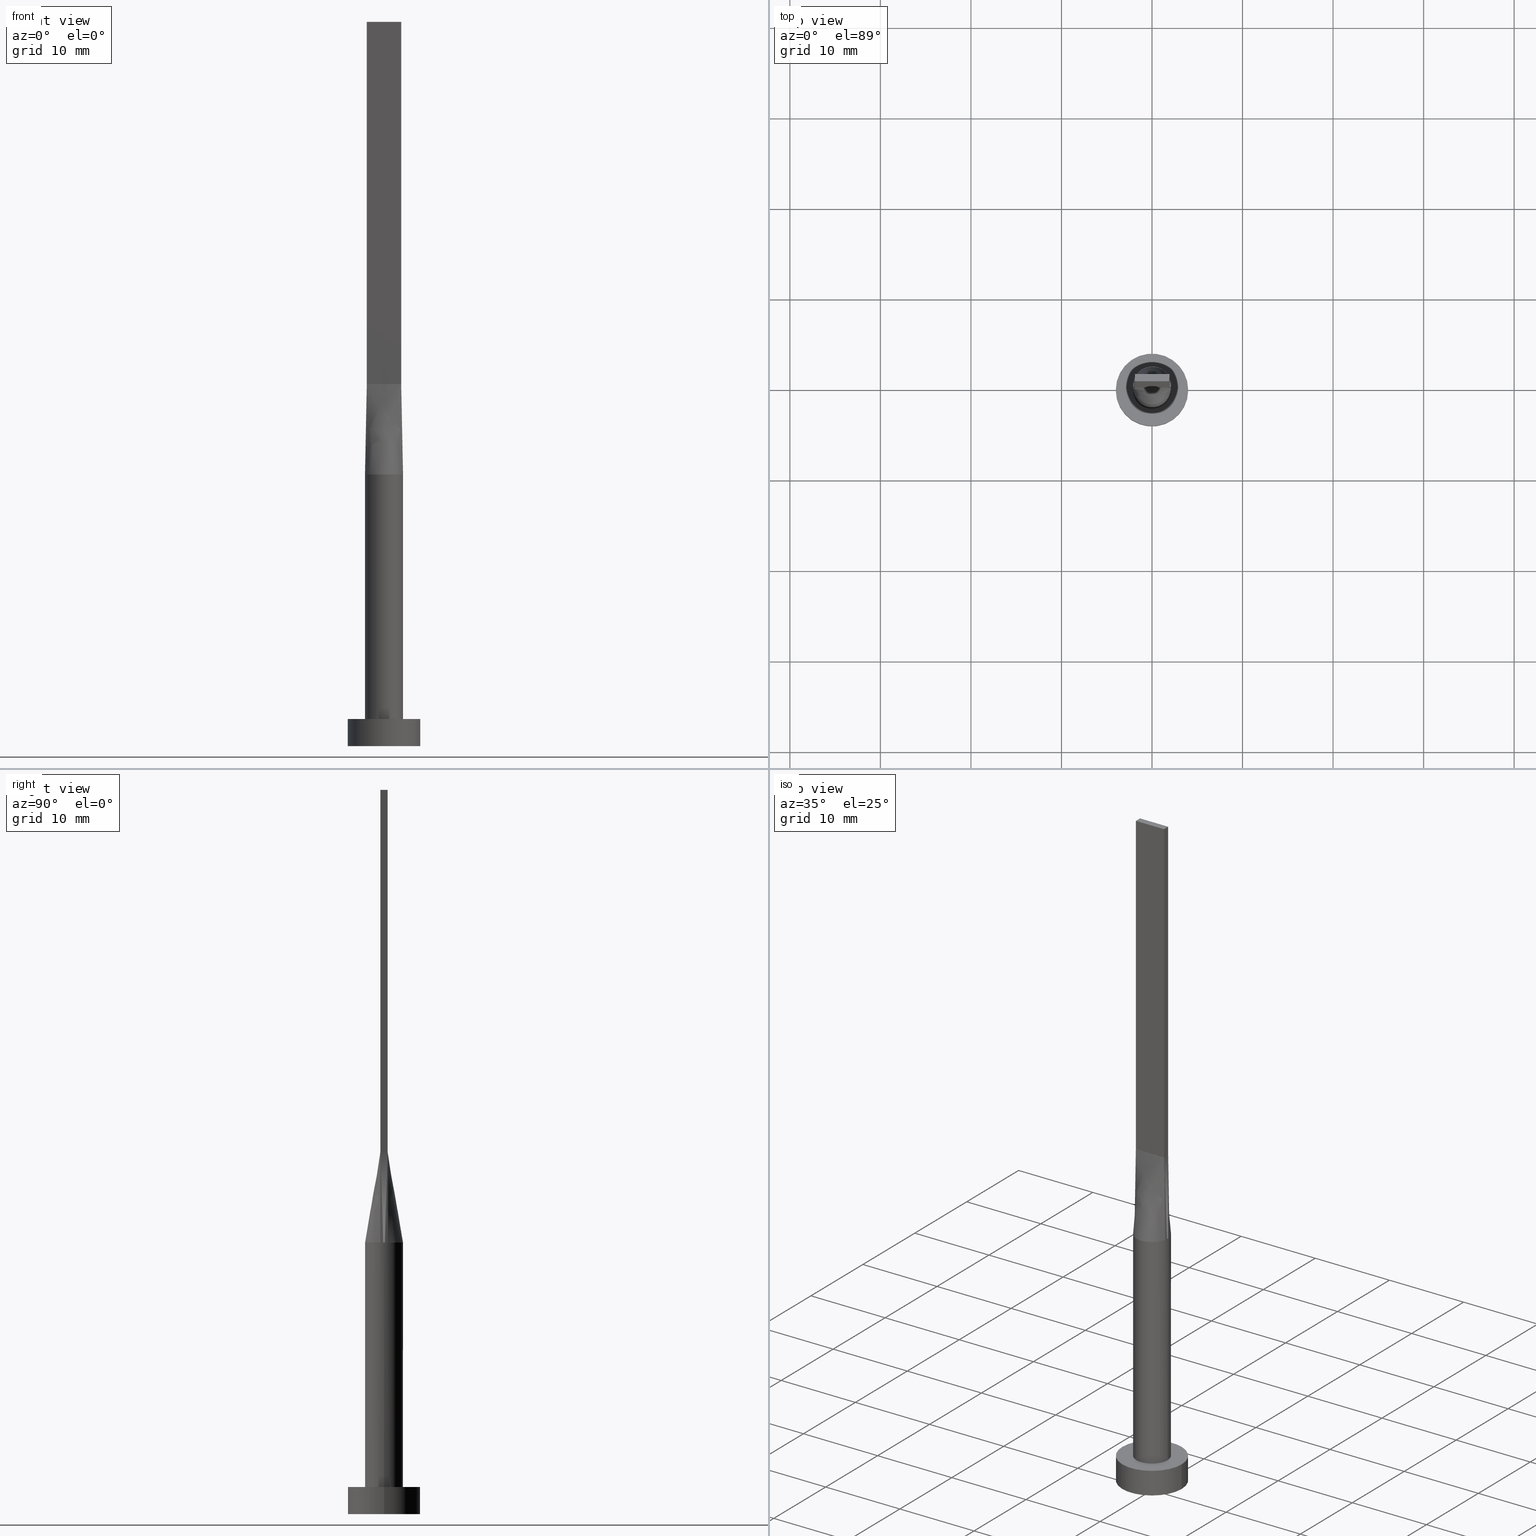
[diagram: canonical four-view strip — front | top / right | iso, engineering-drawing reading convention]
A machine part, canonical four-view strip (front | top / right | iso — engineering-drawing reading convention). The complete STEP part file that produces these views, byte-faithful:
ISO-10303-21;
HEADER;
FILE_DESCRIPTION (( 'STEP AP203' ),
    '1' );
FILE_NAME ('f907.STEP',
    '2026-02-12T09:04:25',
    ( '' ),
    ( '' ),
    'SwSTEP 2.0',
    'SolidWorks 2019',
    '' );
FILE_SCHEMA (( 'CONFIG_CONTROL_DESIGN' ));
ENDSEC;

DATA;
#1 = DIRECTION ( 'NONE',  ( 0.000000000000000000, 0.000000000000000000, 1.000000000000000000 ) ) ;
#2 = CIRCLE ( 'NONE', #452, 2.100000000000000089 ) ;
#3 = DIRECTION ( 'NONE',  ( -2.710505431213761578E-16, -1.000000000000000000, 0.000000000000000000 ) ) ;
#4 = CARTESIAN_POINT ( 'NONE',  ( 0.6333333333333355242, -0.3999999999999997446, 39.99999999999999289 ) ) ;
#5 = CIRCLE ( 'NONE', #359, 2.100000000000000089 ) ;
#6 = PLANE ( 'NONE',  #107 ) ;
#7 = DIRECTION ( 'NONE',  ( -1.000000000000000000, 8.131516293641283255E-16, 0.000000000000000000 ) ) ;
#8 = CARTESIAN_POINT ( 'NONE',  ( 1.069497409764670115, -1.827724181718573204, 30.00000000000001776 ) ) ;
#9 = AXIS2_PLACEMENT_3D ( 'NONE', #535, #541, #233 ) ;
#10 = CARTESIAN_POINT ( 'NONE',  ( 1.899999999999999023, -0.3999999999999998002, 40.00000000000000000 ) ) ;
#11 = DATE_AND_TIME ( #561, #526 ) ;
#12 = ADVANCED_FACE ( 'NONE', ( #402 ), #573, .F. ) ;
#13 = CARTESIAN_POINT ( 'NONE',  ( -1.899999999999999911, -0.3999999999999995781, 80.00000000000000000 ) ) ;
#14 = CARTESIAN_POINT ( 'NONE',  ( -1.899999999999999689, 0.4000000000000002442, 40.00000000000000000 ) ) ;
#15 = ORIENTED_EDGE ( 'NONE', *, *, #580, .F. ) ;
#16 = EDGE_CURVE ( 'NONE', #403, #443, #371, .T. ) ;
#17 = APPROVAL_DATE_TIME ( #421, #102 ) ;
#18 = VECTOR ( 'NONE', #141, 1000.000000000000000 ) ;
#19 = CARTESIAN_POINT ( 'NONE',  ( 1.899999999999999689, 0.4000000000000002442, 40.00000000000000000 ) ) ;
#20 = VERTEX_POINT ( 'NONE', #274 ) ;
#21 = CALENDAR_DATE ( 2026, 12, 2 ) ;
#22 = APPROVAL ( #83, 'NEUR�EN�' ) ;
#23 = AXIS2_PLACEMENT_3D ( 'NONE', #327, #7, #152 ) ;
#24 = CARTESIAN_POINT ( 'NONE',  ( -0.2839879338753505955, 2.100000000000000533, 30.00000000000000000 ) ) ;
#25 = EDGE_LOOP ( 'NONE', ( #333, #578 ) ) ;
#26 = APPROVAL_STATUS ( 'not_yet_approved' ) ;
#27 = CARTESIAN_POINT ( 'NONE',  ( 1.266666666666666385, 0.4000000000000001887, 39.99999999999999289 ) ) ;
#28 = ORIENTED_EDGE ( 'NONE', *, *, #122, .T. ) ;
#29 = CARTESIAN_POINT ( 'NONE',  ( 1.899999999999999689, 0.4000000000000002442, 80.00000000000000000 ) ) ;
#30 = ORIENTED_EDGE ( 'NONE', *, *, #16, .F. ) ;
#31 = CARTESIAN_POINT ( 'NONE',  ( 0.000000000000000000, 0.000000000000000000, 3.000000000000000000 ) ) ;
#32 = DIRECTION ( 'NONE',  ( -1.000000000000000000, 0.000000000000000000, 0.000000000000000000 ) ) ;
#33 = CARTESIAN_POINT ( 'NONE',  ( 0.000000000000000000, 0.000000000000000000, 3.000000000000000000 ) ) ;
#34 = APPLICATION_PROTOCOL_DEFINITION ( 'international standard', 'config_control_design', 1994, #133 ) ;
#35 = CARTESIAN_POINT ( 'NONE',  ( -2.100000000000000089, 0.000000000000000000, 3.000000000000000000 ) ) ;
#36 = CARTESIAN_POINT ( 'NONE',  ( -1.899999999999999467, 0.2666666666666668850, 39.99999999999999289 ) ) ;
#37 = ORIENTED_EDGE ( 'NONE', *, *, #366, .T. ) ;
#38 = CARTESIAN_POINT ( 'NONE',  ( -1.899999999999999911, -0.3999999999999995781, 40.00000000000000000 ) ) ;
#39 = CARTESIAN_POINT ( 'NONE',  ( -1.960396204527856456, 0.7808940436533434726, 30.00000000000000000 ) ) ;
#40 = VECTOR ( 'NONE', #557, 1000.000000000000000 ) ;
#41 = ADVANCED_FACE ( 'NONE', ( #311 ), #263, .T. ) ;
#42 = DIRECTION ( 'NONE',  ( -0.000000000000000000, -0.000000000000000000, -1.000000000000000000 ) ) ;
#43 = CARTESIAN_POINT ( 'NONE',  ( 0.000000000000000000, 0.000000000000000000, 3.000000000000000000 ) ) ;
#44 = APPROVAL_PERSON_ORGANIZATION ( #104, #102, #344 ) ;
#45 = EDGE_CURVE ( 'NONE', #456, #72, #467, .T. ) ;
#46 = DIRECTION ( 'NONE',  ( -0.01549351246150988334, -0.003261792097160004338, 0.9998746480354023802 ) ) ;
#47 = DIRECTION ( 'NONE',  ( 1.000000000000000000, 0.000000000000000000, -0.000000000000000000 ) ) ;
#48 = CARTESIAN_POINT ( 'NONE',  ( -1.583333333333332149, -0.3999999999999995226, 39.99999999999999289 ) ) ;
#49 = PRODUCT_DEFINITION ( 'NEZN�M�', '', #303, #161 ) ;
#50 = CIRCLE ( 'NONE', #9, 2.100000000000000089 ) ;
#51 = ORIENTED_EDGE ( 'NONE', *, *, #204, .F. ) ;
#52 = ADVANCED_FACE ( 'NONE', ( #570 ), #577, .T. ) ;
#53 = CARTESIAN_POINT ( 'NONE',  ( -1.899999999999999911, -0.3999999999999995781, 40.00000000000000000 ) ) ;
#54 = FACE_OUTER_BOUND ( 'NONE', #544, .T. ) ;
#55 = CC_DESIGN_APPROVAL ( #22, ( #49 ) ) ;
#56 = ORIENTED_EDGE ( 'NONE', *, *, #329, .T. ) ;
#57 = DIRECTION ( 'NONE',  ( 1.000000000000000000, 0.000000000000000000, -0.000000000000000000 ) ) ;
#58 = CARTESIAN_POINT ( 'NONE',  ( 1.899999999999999689, 0.4000000000000002442, 40.00000000000000000 ) ) ;
#59 = CARTESIAN_POINT ( 'NONE',  ( -1.108333333333330950, -0.3999999999999995781, 39.99999999999999289 ) ) ;
#60 = CARTESIAN_POINT ( 'NONE',  ( -2.054954548472173403, -0.4326220102046674509, 30.00000000000000000 ) ) ;
#61 = ORIENTED_EDGE ( 'NONE', *, *, #329, .F. ) ;
#62 = CC_DESIGN_SECURITY_CLASSIFICATION ( #99, ( #303 ) ) ;
#63 = EDGE_CURVE ( 'NONE', #465, #297, #539, .T. ) ;
#64 = CARTESIAN_POINT ( 'NONE',  ( -1.288188016604684183, 1.676316068528189263, 30.00000000000000355 ) ) ;
#65 = ORIENTED_EDGE ( 'NONE', *, *, #137, .T. ) ;
#66 = CYLINDRICAL_SURFACE ( 'NONE', #504, 2.100000000000000089 ) ;
#67 = ORIENTED_EDGE ( 'NONE', *, *, #153, .F. ) ;
#68 = CARTESIAN_POINT ( 'NONE',  ( 1.288188016604684183, 1.676316068528189041, 30.00000000000000355 ) ) ;
#69 = EDGE_LOOP ( 'NONE', ( #517, #322, #61, #300 ) ) ;
#70 = AXIS2_PLACEMENT_3D ( 'NONE', #534, #397, #171 ) ;
#71 = CARTESIAN_POINT ( 'NONE',  ( 0.7916666666666665186, 0.4000000000000001887, 39.99999999999999289 ) ) ;
#72 = VERTEX_POINT ( 'NONE', #454 ) ;
#73 = EDGE_LOOP ( 'NONE', ( #222, #294, #217, #250 ) ) ;
#74 = DIRECTION ( 'NONE',  ( 0.000000000000000000, 0.000000000000000000, 1.000000000000000000 ) ) ;
#75 = CARTESIAN_POINT ( 'NONE',  ( -1.069497409764671003, 1.827724181718571872, 29.99999999999999645 ) ) ;
#76 = VERTEX_POINT ( 'NONE', #248 ) ;
#77 = DIRECTION ( 'NONE',  ( 1.000000000000000000, 0.000000000000000000, 0.000000000000000000 ) ) ;
#78 = CIRCLE ( 'NONE', #180, 4.000000000000000000 ) ;
#79 = CARTESIAN_POINT ( 'NONE',  ( 1.977477274236086213, 0.4163110051023343749, 35.00000000000000000 ) ) ;
#80 = CARTESIAN_POINT ( 'NONE',  ( 1.638039177766652754, 1.336522195786985057, 30.00000000000000711 ) ) ;
#81 = CARTESIAN_POINT ( 'NONE',  ( -1.899999999999999911, -0.3999999999999995781, 80.00000000000000000 ) ) ;
#82 = CARTESIAN_POINT ( 'NONE',  ( -2.084662771283844140, -0.2915079518492298405, 30.00000000000000000 ) ) ;
#83 = APPROVAL_STATUS ( 'not_yet_approved' ) ;
#84 = B_SPLINE_SURFACE_WITH_KNOTS ( 'NONE', 3, 1, ( 
 ( #407, #277 ),
 ( #189, #267 ),
 ( #135, #485 ),
 ( #538, #88 ),
 ( #364, #542 ),
 ( #131, #448 ) ),
 .UNSPECIFIED., .F., .F., .F.,
 ( 4, 2, 4 ),
 ( 2, 2 ),
 ( 0.000000000000000000, 0.5000000000000000000, 1.000000000000000000 ),
 ( 0.000000000000000000, 1.000000000000000000 ),
 .UNSPECIFIED. ) ;
#85 = DIRECTION ( 'NONE',  ( 0.000000000000000000, 0.000000000000000000, 1.000000000000000000 ) ) ;
#86 = CC_DESIGN_DATE_AND_TIME_ASSIGNMENT ( #289, #166, ( #99 ) ) ;
#87 = CARTESIAN_POINT ( 'NONE',  ( -1.069497409764671003, 1.827724181718571872, 29.99999999999999645 ) ) ;
#88 = CARTESIAN_POINT ( 'NONE',  ( 1.899999999999999467, 0.1333333333333330262, 39.99999999999999289 ) ) ;
#89 = DIRECTION ( 'NONE',  ( 1.000000000000000000, 0.000000000000000000, 0.000000000000000000 ) ) ;
#90 = CIRCLE ( 'NONE', #207, 4.000000000000000000 ) ;
#91 = DIRECTION ( 'NONE',  ( -1.000000000000000000, 5.706327223607918787E-17, 0.000000000000000000 ) ) ;
#92 = PLANE ( 'NONE',  #96 ) ;
#93 = EDGE_CURVE ( 'NONE', #257, #370, #524, .T. ) ;
#94 = CARTESIAN_POINT ( 'NONE',  ( -1.977477274236086657, -0.4163110051023335423, 35.00000000000000000 ) ) ;
#95 = CARTESIAN_POINT ( 'NONE',  ( -1.769939800381044481, -1.149026496286139176, 29.99999999999999645 ) ) ;
#96 = AXIS2_PLACEMENT_3D ( 'NONE', #500, #547, #278 ) ;
#97 = CARTESIAN_POINT ( 'NONE',  ( 4.000000000000000000, 4.898587196589412829E-16, 3.000000000000000000 ) ) ;
#98 = CARTESIAN_POINT ( 'NONE',  ( 1.638039177766651200, -1.336522195786985279, 30.00000000000001066 ) ) ;
#99 = SECURITY_CLASSIFICATION ( '', '', #433 ) ;
#100 = ORIENTED_EDGE ( 'NONE', *, *, #93, .F. ) ;
#101 = CARTESIAN_POINT ( 'NONE',  ( -0.6333333333333305282, -0.3999999999999996336, 39.99999999999999289 ) ) ;
#102 = APPROVAL ( #110, 'NEUR�EN�' ) ;
#103 = DIRECTION ( 'NONE',  ( 1.000000000000000000, -5.706327223607920020E-17, 0.000000000000000000 ) ) ;
#104 = PERSON_AND_ORGANIZATION ( #462, #338 ) ;
#105 = MANIFOLD_SOLID_BREP ( 'P�idat vysunut�m5', #549 ) ;
#106 = AXIS2_PLACEMENT_3D ( 'NONE', #446, #1, #270 ) ;
#107 = AXIS2_PLACEMENT_3D ( 'NONE', #457, #242, #47 ) ;
#108 = CARTESIAN_POINT ( 'NONE',  ( -2.019676033883314403, -0.6001949545017496446, 30.00000000000000355 ) ) ;
#109 = EDGE_LOOP ( 'NONE', ( #471, #386, #523, #65 ) ) ;
#110 = APPROVAL_STATUS ( 'not_yet_approved' ) ;
#111 = VECTOR ( 'NONE', #552, 1000.000000000000000 ) ;
#112 = CARTESIAN_POINT ( 'NONE',  ( -1.108333333333333615, 0.4000000000000001887, 39.99999999999999289 ) ) ;
#113 = ORIENTED_EDGE ( 'NONE', *, *, #301, .F. ) ;
#114 = COORDINATED_UNIVERSAL_TIME_OFFSET ( 1, 0, .AHEAD. ) ;
#115 = DIRECTION ( 'NONE',  ( 0.000000000000000000, 0.000000000000000000, 1.000000000000000000 ) ) ;
#116 = EDGE_LOOP ( 'NONE', ( #498, #440, #347, #212 ) ) ;
#117 = PERSON_AND_ORGANIZATION ( #462, #338 ) ;
#118 = VECTOR ( 'NONE', #221, 1000.000000000000000 ) ;
#119 = DIRECTION ( 'NONE',  ( -0.000000000000000000, -0.000000000000000000, -1.000000000000000000 ) ) ;
#120 = VERTEX_POINT ( 'NONE', #336 ) ;
#121 = COORDINATED_UNIVERSAL_TIME_OFFSET ( 1, 0, .AHEAD. ) ;
#122 = EDGE_CURVE ( 'NONE', #473, #501, #564, .T. ) ;
#123 = CARTESIAN_POINT ( 'NONE',  ( -2.019676033883313959, 0.6001949545017503107, 30.00000000000000355 ) ) ;
#124 = ORIENTED_EDGE ( 'NONE', *, *, #533, .T. ) ;
#125 = ORIENTED_EDGE ( 'NONE', *, *, #469, .F. ) ;
#126 =( NAMED_UNIT ( * ) SI_UNIT ( $, .STERADIAN. ) SOLID_ANGLE_UNIT ( ) );
#127 = FACE_OUTER_BOUND ( 'NONE', #116, .T. ) ;
#128 = CARTESIAN_POINT ( 'NONE',  ( -1.899999999999999911, -0.3999999999999995781, 40.00000000000000000 ) ) ;
#129 = CARTESIAN_POINT ( 'NONE',  ( -4.000000000000000000, 0.000000000000000000, 3.000000000000000000 ) ) ;
#130 = AXIS2_PLACEMENT_3D ( 'NONE', #43, #532, #185 ) ;
#131 = CARTESIAN_POINT ( 'NONE',  ( 2.054954548472172959, 0.4326220102046685612, 30.00000000000000000 ) ) ;
#132 = CARTESIAN_POINT ( 'NONE',  ( -1.899999999999999689, 0.4000000000000002442, 40.00000000000000000 ) ) ;
#133 = APPLICATION_CONTEXT ( 'configuration controlled 3d designs of mechanical parts and assemblies' ) ;
#134 = CALENDAR_DATE ( 2026, 12, 2 ) ;
#135 = CARTESIAN_POINT ( 'NONE',  ( 2.099516882689679953, -0.1457539759246157252, 30.00000000000000000 ) ) ;
#136 = CARTESIAN_POINT ( 'NONE',  ( 1.288188016604684183, 1.676316068528189041, 30.00000000000000355 ) ) ;
#137 = EDGE_CURVE ( 'NONE', #520, #159, #559, .T. ) ;
#138 = DIRECTION ( 'NONE',  ( 1.000000000000000000, 0.000000000000000000, -0.000000000000000000 ) ) ;
#139 = CARTESIAN_POINT ( 'NONE',  ( 2.100000000000000089, 2.571758278209441957E-16, 30.00000000000000000 ) ) ;
#140 = CARTESIAN_POINT ( 'NONE',  ( -1.899999999999999689, 0.4000000000000002442, 40.00000000000000000 ) ) ;
#141 = DIRECTION ( 'NONE',  ( -0.000000000000000000, -0.000000000000000000, -1.000000000000000000 ) ) ;
#142 = AXIS2_PLACEMENT_3D ( 'NONE', #325, #545, #144 ) ;
#143 = ORIENTED_EDGE ( 'NONE', *, *, #45, .F. ) ;
#144 = DIRECTION ( 'NONE',  ( 1.000000000000000000, 0.000000000000000000, 0.000000000000000000 ) ) ;
#145 = CARTESIAN_POINT ( 'NONE',  ( 1.899999999999999689, 0.4000000000000002442, 80.00000000000000000 ) ) ;
#146 = EDGE_CURVE ( 'NONE', #501, #206, #395, .T. ) ;
#147 = FACE_BOUND ( 'NONE', #25, .T. ) ;
#148 = CARTESIAN_POINT ( 'NONE',  ( 2.054954548472172959, -0.4326220102046682281, 30.00000000000000000 ) ) ;
#149 = EDGE_CURVE ( 'NONE', #520, #556, #430, .T. ) ;
#150 = CARTESIAN_POINT ( 'NONE',  ( -2.099758441344840243, -1.448674240509545331E-15, 30.00000000000000000 ) ) ;
#151 = CIRCLE ( 'NONE', #142, 2.100000000000000089 ) ;
#152 = DIRECTION ( 'NONE',  ( -8.131516293641283255E-16, -1.000000000000000000, 0.000000000000000000 ) ) ;
#153 = EDGE_CURVE ( 'NONE', #481, #473, #2, .T. ) ;
#154 = ORIENTED_EDGE ( 'NONE', *, *, #153, .T. ) ;
#155 = LINE ( 'NONE', #129, #234 ) ;
#156 = VECTOR ( 'NONE', #119, 1000.000000000000000 ) ;
#157 = ADVANCED_FACE ( 'NONE', ( #127 ), #176, .T. ) ;
#158 = CARTESIAN_POINT ( 'NONE',  ( 1.108333333333333171, 0.4000000000000002442, 39.99999999999999289 ) ) ;
#159 = VERTEX_POINT ( 'NONE', #260 ) ;
#160 = ORIENTED_EDGE ( 'NONE', *, *, #309, .T. ) ;
#161 = DESIGN_CONTEXT ( 'detailed design', #133, 'design' ) ;
#162 = CARTESIAN_POINT ( 'NONE',  ( 1.769939800381044259, 1.149026496286139620, 29.99999999999999645 ) ) ;
#163 = ORIENTED_EDGE ( 'NONE', *, *, #575, .T. ) ;
#164 = CARTESIAN_POINT ( 'NONE',  ( 1.960396204527856900, 0.7808940436533436946, 30.00000000000000355 ) ) ;
#165 = EDGE_LOOP ( 'NONE', ( #28, #484, #558, #37 ) ) ;
#166 = DATE_TIME_ROLE ( 'classification_date' ) ;
#167 = AXIS2_PLACEMENT_3D ( 'NONE', #315, #494, #310 ) ;
#168 = EDGE_CURVE ( 'NONE', #159, #257, #442, .T. ) ;
#169 = CARTESIAN_POINT ( 'NONE',  ( 0.1583333333333330206, 0.4000000000000001887, 40.00000000000000000 ) ) ;
#170 = EDGE_LOOP ( 'NONE', ( #563, #15, #428, #67, #291, #285 ) ) ;
#171 = DIRECTION ( 'NONE',  ( 1.000000000000000000, -8.881784197001252323E-16, 0.000000000000000000 ) ) ;
#172 = CIRCLE ( 'NONE', #70, 2.100000000000000089 ) ;
#173 = CARTESIAN_POINT ( 'NONE',  ( 0.6333333333333331927, 0.4000000000000001887, 39.99999999999999289 ) ) ;
#174 = CARTESIAN_POINT ( 'NONE',  ( -1.899999999999999467, 0.1333333333333335535, 39.99999999999999289 ) ) ;
#175 = ADVANCED_FACE ( 'NONE', ( #476 ), #66, .T. ) ;
#176 = B_SPLINE_SURFACE_WITH_KNOTS ( 'NONE', 3, 1, ( 
 ( #565, #19 ),
 ( #296, #205 ),
 ( #164, #438 ),
 ( #162, #27 ),
 ( #208, #158 ),
 ( #68, #71 ),
 ( #434, #173 ),
 ( #480, #256 ),
 ( #349, #169 ),
 ( #24, #389 ),
 ( #427, #211 ),
 ( #75, #387 ),
 ( #64, #342 ),
 ( #516, #112 ),
 ( #522, #562 ),
 ( #472, #346 ),
 ( #123, #293 ),
 ( #304, #483 ) ),
 .UNSPECIFIED., .F., .F., .F.,
 ( 4, 2, 2, 2, 2, 2, 2, 2, 4 ),
 ( 2, 2 ),
 ( 0.000000000000000000, 0.1250000000000000000, 0.2500000000000000000, 0.3750000000000000000, 0.5000000000000000000, 0.6250000000000000000, 0.7500000000000000000, 0.8750000000000000000, 1.000000000000000000 ),
 ( 0.000000000000000000, 1.000000000000000000 ),
 .UNSPECIFIED. ) ;
#177 = DIRECTION ( 'NONE',  ( -1.000000000000000000, 0.000000000000000000, 0.000000000000000000 ) ) ;
#178 = CARTESIAN_POINT ( 'NONE',  ( 0.5670887265440297531, 2.040296735810463780, 30.00000000000000000 ) ) ;
#179 = APPROVAL_ROLE ( '' ) ;
#180 = AXIS2_PLACEMENT_3D ( 'NONE', #352, #410, #236 ) ;
#181 = DIRECTION ( 'NONE',  ( 0.000000000000000000, 0.000000000000000000, 1.000000000000000000 ) ) ;
#182 = CARTESIAN_POINT ( 'NONE',  ( -2.099516882689679953, 0.1457539759246153366, 30.00000000000000000 ) ) ;
#183 = EDGE_CURVE ( 'NONE', #76, #206, #313, .T. ) ;
#184 = DIRECTION ( 'NONE',  ( 1.000000000000000000, 0.000000000000000000, 0.000000000000000000 ) ) ;
#185 = DIRECTION ( 'NONE',  ( -1.000000000000000000, 0.000000000000000000, 0.000000000000000000 ) ) ;
#186 = CC_DESIGN_APPROVAL ( #412, ( #99 ) ) ;
#187 = ORIENTED_EDGE ( 'NONE', *, *, #253, .F. ) ;
#188 = PLANE ( 'NONE',  #318 ) ;
#189 = CARTESIAN_POINT ( 'NONE',  ( 2.084662771283844140, -0.2915079518492312838, 30.00000000000000000 ) ) ;
#190 = LINE ( 'NONE', #505, #18 ) ;
#191 = CARTESIAN_POINT ( 'NONE',  ( 1.288188016604683739, -1.676316068528189263, 30.00000000000001421 ) ) ;
#192 =( GEOMETRIC_REPRESENTATION_CONTEXT ( 3 ) GLOBAL_UNCERTAINTY_ASSIGNED_CONTEXT ( ( #426 ) ) GLOBAL_UNIT_ASSIGNED_CONTEXT ( ( #258, #441, #126 ) ) REPRESENTATION_CONTEXT ( 'NONE', 'WORKASPACE' ) );
#193 = PLANE ( 'NONE',  #579 ) ;
#194 = CARTESIAN_POINT ( 'NONE',  ( 0.1583333333333359905, -0.3999999999999996336, 39.99999999999999289 ) ) ;
#195 = CC_DESIGN_PERSON_AND_ORGANIZATION_ASSIGNMENT ( #262, #266, ( #400 ) ) ;
#196 = CARTESIAN_POINT ( 'NONE',  ( -1.977477274236086657, 0.4163110051023338753, 35.00000000000000000 ) ) ;
#197 = EDGE_LOOP ( 'NONE', ( #431, #331, #343, #261, #381, #143 ) ) ;
#198 = VECTOR ( 'NONE', #495, 1000.000000000000000 ) ;
#199 = ADVANCED_BREP_SHAPE_REPRESENTATION ( 'f907', ( #105, #567 ), #192 ) ;
#200 = CARTESIAN_POINT ( 'NONE',  ( -1.069497409764672113, -1.827724181718571650, 30.00000000000000711 ) ) ;
#201 = APPROVAL_PERSON_ORGANIZATION ( #383, #412, #376 ) ;
#202 = CALENDAR_DATE ( 2026, 12, 2 ) ;
#203 = CARTESIAN_POINT ( 'NONE',  ( -1.638039177766652310, -1.336522195786983724, 30.00000000000000355 ) ) ;
#204 = EDGE_CURVE ( 'NONE', #120, #20, #272, .T. ) ;
#205 = CARTESIAN_POINT ( 'NONE',  ( 1.741666666666666252, 0.4000000000000002442, 39.99999999999999289 ) ) ;
#206 = VERTEX_POINT ( 'NONE', #453 ) ;
#207 = AXIS2_PLACEMENT_3D ( 'NONE', #411, #492, #264 ) ;
#208 = CARTESIAN_POINT ( 'NONE',  ( 1.638039177766652754, 1.336522195786985057, 30.00000000000000711 ) ) ;
#209 = ORIENTED_EDGE ( 'NONE', *, *, #460, .F. ) ;
#210 = ADVANCED_FACE ( 'NONE', ( #455 ), #84, .T. ) ;
#211 = CARTESIAN_POINT ( 'NONE',  ( -0.3166666666666669294, 0.4000000000000001887, 39.99999999999999289 ) ) ;
#212 = ORIENTED_EDGE ( 'NONE', *, *, #214, .F. ) ;
#213 = APPROVAL_DATE_TIME ( #11, #412 ) ;
#214 = EDGE_CURVE ( 'NONE', #456, #159, #450, .T. ) ;
#215 = DIRECTION ( 'NONE',  ( 1.000000000000000000, 0.000000000000000000, 0.000000000000000000 ) ) ;
#216 = VERTEX_POINT ( 'NONE', #307 ) ;
#217 = ORIENTED_EDGE ( 'NONE', *, *, #533, .F. ) ;
#218 = CARTESIAN_POINT ( 'NONE',  ( 4.000000000000000000, 4.898587196589412829E-16, 3.000000000000000000 ) ) ;
#219 = ORIENTED_EDGE ( 'NONE', *, *, #137, .F. ) ;
#220 = AXIS2_PLACEMENT_3D ( 'NONE', #350, #447, #229 ) ;
#221 = DIRECTION ( 'NONE',  ( -2.710505431213761578E-16, -1.000000000000000000, 0.000000000000000000 ) ) ;
#222 = ORIENTED_EDGE ( 'NONE', *, *, #288, .T. ) ;
#223 = DIRECTION ( 'NONE',  ( -0.000000000000000000, -0.000000000000000000, -1.000000000000000000 ) ) ;
#224 = LINE ( 'NONE', #38, #419 ) ;
#225 = CARTESIAN_POINT ( 'NONE',  ( -2.099516882689679953, -0.1457539759246147815, 30.00000000000000000 ) ) ;
#226 = PERSON_AND_ORGANIZATION ( #462, #338 ) ;
#227 = B_SPLINE_SURFACE_WITH_KNOTS ( 'NONE', 3, 1, ( 
 ( #60, #283 ),
 ( #108, #290 ),
 ( #243, #48 ),
 ( #95, #550 ),
 ( #203, #59 ),
 ( #247, #548 ),
 ( #200, #101 ),
 ( #281, #286 ),
 ( #239, #374 ),
 ( #377, #194 ),
 ( #418, #367 ),
 ( #8, #4 ),
 ( #191, #326 ),
 ( #98, #510 ),
 ( #468, #414 ),
 ( #417, #369 ),
 ( #245, #420 ),
 ( #148, #10 ) ),
 .UNSPECIFIED., .F., .F., .F.,
 ( 4, 2, 2, 2, 2, 2, 2, 2, 4 ),
 ( 2, 2 ),
 ( 0.000000000000000000, 0.1250000000000000833, 0.2500000000000001110, 0.3750000000000001110, 0.5000000000000001110, 0.6250000000000001110, 0.7500000000000000000, 0.8750000000000000000, 1.000000000000000000 ),
 ( 0.000000000000000000, 1.000000000000000000 ),
 .UNSPECIFIED. ) ;
#228 = DIRECTION ( 'NONE',  ( -0.000000000000000000, -0.000000000000000000, -1.000000000000000000 ) ) ;
#229 = DIRECTION ( 'NONE',  ( 2.710505431213761578E-16, 1.000000000000000000, 0.000000000000000000 ) ) ;
#230 = APPROVAL_DATE_TIME ( #269, #22 ) ;
#231 = CYLINDRICAL_SURFACE ( 'NONE', #405, 2.100000000000000089 ) ;
#232 = CARTESIAN_POINT ( 'NONE',  ( -2.055148177435248691, 0.4326628259079252081, 30.00000000000000000 ) ) ;
#233 = DIRECTION ( 'NONE',  ( 1.000000000000000000, 0.000000000000000000, 0.000000000000000000 ) ) ;
#234 = VECTOR ( 'NONE', #223, 1000.000000000000000 ) ;
#235 = EDGE_CURVE ( 'NONE', #252, #297, #50, .T. ) ;
#236 = DIRECTION ( 'NONE',  ( 1.000000000000000000, 0.000000000000000000, 0.000000000000000000 ) ) ;
#237 = CARTESIAN_POINT ( 'NONE',  ( -4.000000000000000000, 0.000000000000000000, 3.000000000000000000 ) ) ;
#238 = VECTOR ( 'NONE', #555, 1000.000000000000000 ) ;
#239 = CARTESIAN_POINT ( 'NONE',  ( -0.2839879338753514282, -2.100000000000000533, 30.00000000000000711 ) ) ;
#240 = DIRECTION ( 'NONE',  ( -0.01549351246150990416, -0.003261792097159956199, -0.9998746480354023802 ) ) ;
#241 = DIRECTION ( 'NONE',  ( 8.131516293641283255E-16, 1.000000000000000000, 0.000000000000000000 ) ) ;
#242 = DIRECTION ( 'NONE',  ( 0.000000000000000000, 0.000000000000000000, 1.000000000000000000 ) ) ;
#243 = CARTESIAN_POINT ( 'NONE',  ( -1.960396204527856456, -0.7808940436533431395, 30.00000000000000000 ) ) ;
#244 = ORIENTED_EDGE ( 'NONE', *, *, #580, .T. ) ;
#245 = CARTESIAN_POINT ( 'NONE',  ( 2.019676033883313071, -0.6001949545017514209, 30.00000000000000000 ) ) ;
#246 = VECTOR ( 'NONE', #42, 1000.000000000000000 ) ;
#247 = CARTESIAN_POINT ( 'NONE',  ( -1.288188016604684627, -1.676316068528187930, 30.00000000000001066 ) ) ;
#248 = CARTESIAN_POINT ( 'NONE',  ( 1.899999999999999023, -0.3999999999999998002, 80.00000000000000000 ) ) ;
#249 = ORIENTED_EDGE ( 'NONE', *, *, #366, .F. ) ;
#250 = ORIENTED_EDGE ( 'NONE', *, *, #358, .T. ) ;
#251 = CARTESIAN_POINT ( 'NONE',  ( 0.000000000000000000, 0.000000000000000000, 30.00000000000000000 ) ) ;
#252 = VERTEX_POINT ( 'NONE', #35 ) ;
#253 = EDGE_CURVE ( 'NONE', #443, #403, #90, .T. ) ;
#254 = CARTESIAN_POINT ( 'NONE',  ( 1.977477274236086213, -0.4163110051023340419, 35.00000000000000000 ) ) ;
#255 = ORIENTED_EDGE ( 'NONE', *, *, #183, .T. ) ;
#256 = CARTESIAN_POINT ( 'NONE',  ( 0.3166666666666663743, 0.4000000000000001887, 39.99999999999999289 ) ) ;
#257 = VERTEX_POINT ( 'NONE', #140 ) ;
#258 =( LENGTH_UNIT ( ) NAMED_UNIT ( * ) SI_UNIT ( .MILLI., .METRE. ) );
#259 = ADVANCED_FACE ( 'NONE', ( #319 ), #273, .F. ) ;
#260 = CARTESIAN_POINT ( 'NONE',  ( 1.899999999999999689, 0.4000000000000002442, 40.00000000000000000 ) ) ;
#261 = ORIENTED_EDGE ( 'NONE', *, *, #409, .F. ) ;
#262 = PERSON_AND_ORGANIZATION ( #462, #338 ) ;
#263 = B_SPLINE_SURFACE_WITH_KNOTS ( 'NONE', 3, 1, ( 
 ( #529, #132 ),
 ( #488, #36 ),
 ( #182, #174 ),
 ( #225, #308 ),
 ( #82, #357 ),
 ( #268, #128 ) ),
 .UNSPECIFIED., .F., .F., .F.,
 ( 4, 2, 4 ),
 ( 2, 2 ),
 ( 0.000000000000000000, 0.5000000000000000000, 1.000000000000000000 ),
 ( 0.000000000000000000, 1.000000000000000000 ),
 .UNSPECIFIED. ) ;
#264 = DIRECTION ( 'NONE',  ( 1.000000000000000000, 0.000000000000000000, 0.000000000000000000 ) ) ;
#265 = CARTESIAN_POINT ( 'NONE',  ( 0.2839879338753505955, 2.100000000000000533, 30.00000000000000000 ) ) ;
#266 = PERSON_AND_ORGANIZATION_ROLE ( 'design_owner' ) ;
#267 = CARTESIAN_POINT ( 'NONE',  ( 1.899999999999999689, -0.2666666666666667740, 39.99999999999999289 ) ) ;
#268 = CARTESIAN_POINT ( 'NONE',  ( -2.054954548472173403, -0.4326220102046674509, 30.00000000000000000 ) ) ;
#269 = DATE_AND_TIME ( #134, #490 ) ;
#270 = DIRECTION ( 'NONE',  ( 1.000000000000000000, 0.000000000000000000, 0.000000000000000000 ) ) ;
#271 = CARTESIAN_POINT ( 'NONE',  ( -1.288188016604684183, 1.676316068528189263, 30.00000000000000355 ) ) ;
#272 = CIRCLE ( 'NONE', #106, 4.000000000000000000 ) ;
#273 = PLANE ( 'NONE',  #334 ) ;
#274 = CARTESIAN_POINT ( 'NONE',  ( -4.000000000000000000, 0.000000000000000000, 0.000000000000000000 ) ) ;
#275 = ADVANCED_FACE ( 'NONE', ( #572 ), #231, .T. ) ;
#276 = CC_DESIGN_PERSON_AND_ORGANIZATION_ASSIGNMENT ( #404, #574, ( #49 ) ) ;
#277 = CARTESIAN_POINT ( 'NONE',  ( 1.899999999999999911, -0.3999999999999998002, 40.00000000000000000 ) ) ;
#278 = DIRECTION ( 'NONE',  ( 0.000000000000000000, -0.000000000000000000, -1.000000000000000000 ) ) ;
#279 = CARTESIAN_POINT ( 'NONE',  ( -2.100000000000000089, 0.000000000000000000, 30.00000000000000000 ) ) ;
#280 = VECTOR ( 'NONE', #3, 1000.000000000000000 ) ;
#281 = CARTESIAN_POINT ( 'NONE',  ( -0.5670887265440306413, -2.040296735810464668, 30.00000000000001066 ) ) ;
#282 = LINE ( 'NONE', #279, #284 ) ;
#283 = CARTESIAN_POINT ( 'NONE',  ( -1.899999999999999911, -0.3999999999999995781, 40.00000000000000000 ) ) ;
#284 = VECTOR ( 'NONE', #463, 1000.000000000000000 ) ;
#285 = ORIENTED_EDGE ( 'NONE', *, *, #235, .T. ) ;
#286 = CARTESIAN_POINT ( 'NONE',  ( -0.3166666666666637653, -0.3999999999999996336, 39.99999999999999289 ) ) ;
#287 = LINE ( 'NONE', #506, #321 ) ;
#288 = EDGE_CURVE ( 'NONE', #370, #206, #224, .T. ) ;
#289 = DATE_AND_TIME ( #21, #436 ) ;
#290 = CARTESIAN_POINT ( 'NONE',  ( -1.741666666666666030, -0.3999999999999995226, 39.99999999999999289 ) ) ;
#291 = ORIENTED_EDGE ( 'NONE', *, *, #409, .T. ) ;
#292 = COORDINATED_UNIVERSAL_TIME_OFFSET ( 1, 0, .AHEAD. ) ;
#293 = CARTESIAN_POINT ( 'NONE',  ( -1.741666666666666474, 0.4000000000000002442, 39.99999999999999289 ) ) ;
#294 = ORIENTED_EDGE ( 'NONE', *, *, #183, .F. ) ;
#295 = PERSON_AND_ORGANIZATION_ROLE ( 'design_supplier' ) ;
#296 = CARTESIAN_POINT ( 'NONE',  ( 2.019676033883313515, 0.6001949545017501997, 30.00000000000000000 ) ) ;
#297 = VERTEX_POINT ( 'NONE', #569 ) ;
#298 = CALENDAR_DATE ( 2026, 12, 2 ) ;
#299 = CARTESIAN_POINT ( 'NONE',  ( -1.899999999999999689, 0.4000000000000002442, 40.00000000000000000 ) ) ;
#300 = ORIENTED_EDGE ( 'NONE', *, *, #521, .T. ) ;
#301 = EDGE_CURVE ( 'NONE', #20, #120, #78, .T. ) ;
#302 = CARTESIAN_POINT ( 'NONE',  ( -1.899999999999999689, 0.4000000000000002442, 80.00000000000000000 ) ) ;
#303 = PRODUCT_DEFINITION_FORMATION_WITH_SPECIFIED_SOURCE ( 'LIBOVOLN�', '', #400, .NOT_KNOWN. ) ;
#304 = CARTESIAN_POINT ( 'NONE',  ( -2.054954548472173403, 0.4326220102046675064, 30.00000000000000000 ) ) ;
#305 = ORIENTED_EDGE ( 'NONE', *, *, #149, .T. ) ;
#306 = CARTESIAN_POINT ( 'NONE',  ( 0.000000000000000000, 0.000000000000000000, 0.000000000000000000 ) ) ;
#307 = CARTESIAN_POINT ( 'NONE',  ( -1.899999999999999911, -0.3999999999999995781, 80.00000000000000000 ) ) ;
#308 = CARTESIAN_POINT ( 'NONE',  ( -1.899999999999999689, -0.1333333333333330539, 39.99999999999999289 ) ) ;
#309 = EDGE_CURVE ( 'NONE', #465, #456, #382, .T. ) ;
#310 = DIRECTION ( 'NONE',  ( -1.000000000000000000, 0.000000000000000000, 0.000000000000000000 ) ) ;
#311 = FACE_OUTER_BOUND ( 'NONE', #566, .T. ) ;
#312 = ADVANCED_FACE ( 'NONE', ( #356 ), #360, .T. ) ;
#313 = LINE ( 'NONE', #398, #246 ) ;
#314 = CARTESIAN_POINT ( 'NONE',  ( 1.069497409764671003, 1.827724181718572538, 30.00000000000000355 ) ) ;
#315 = CARTESIAN_POINT ( 'NONE',  ( 0.000000000000000000, 0.000000000000000000, 3.000000000000000000 ) ) ;
#316 = ADVANCED_FACE ( 'NONE', ( #581 ), #188, .F. ) ;
#317 = CARTESIAN_POINT ( 'NONE',  ( -1.638039177766652976, 1.336522195786985057, 30.00000000000000355 ) ) ;
#318 = AXIS2_PLACEMENT_3D ( 'NONE', #81, #497, #91 ) ;
#319 = FACE_OUTER_BOUND ( 'NONE', #341, .T. ) ;
#320 = LINE ( 'NONE', #502, #280 ) ;
#321 = VECTOR ( 'NONE', #241, 1000.000000000000000 ) ;
#322 = ORIENTED_EDGE ( 'NONE', *, *, #358, .F. ) ;
#323 = FACE_OUTER_BOUND ( 'NONE', #109, .T. ) ;
#324 = DIRECTION ( 'NONE',  ( 0.01549351246150992671, -0.003261792097159901989, 0.9998746480354023802 ) ) ;
#325 = CARTESIAN_POINT ( 'NONE',  ( 0.000000000000000000, 0.000000000000000000, 30.00000000000000000 ) ) ;
#326 = CARTESIAN_POINT ( 'NONE',  ( 0.7916666666666686281, -0.3999999999999997446, 39.99999999999999289 ) ) ;
#327 = CARTESIAN_POINT ( 'NONE',  ( 1.899999999999999023, -0.3999999999999998002, 80.00000000000000000 ) ) ;
#328 = VECTOR ( 'NONE', #324, 1000.000000000000227 ) ;
#329 = EDGE_CURVE ( 'NONE', #556, #216, #320, .T. ) ;
#330 = LINE ( 'NONE', #58, #111 ) ;
#331 = ORIENTED_EDGE ( 'NONE', *, *, #63, .T. ) ;
#332 = CARTESIAN_POINT ( 'NONE',  ( 2.099758441344840243, 4.928843353830161703E-16, 30.00000000000000000 ) ) ;
#333 = ORIENTED_EDGE ( 'NONE', *, *, #235, .F. ) ;
#334 = AXIS2_PLACEMENT_3D ( 'NONE', #576, #85, #138 ) ;
#335 = ORIENTED_EDGE ( 'NONE', *, *, #16, .T. ) ;
#336 = CARTESIAN_POINT ( 'NONE',  ( 4.000000000000000000, 4.898587196589412829E-16, 0.000000000000000000 ) ) ;
#337 = ORIENTED_EDGE ( 'NONE', *, *, #540, .F. ) ;
#338 = ORGANIZATION ( 'NEUR�EN�', 'NEUR�EN�', '' ) ;
#339 = PERSON_AND_ORGANIZATION ( #462, #338 ) ;
#340 = DIRECTION ( 'NONE',  ( -0.01549351246150994753, 0.003261792097160015180, 0.9998746480354023802 ) ) ;
#341 = EDGE_LOOP ( 'NONE', ( #113, #51 ) ) ;
#342 = CARTESIAN_POINT ( 'NONE',  ( -0.7916666666666668517, 0.4000000000000002442, 39.99999999999999289 ) ) ;
#343 = ORIENTED_EDGE ( 'NONE', *, *, #568, .T. ) ;
#344 = APPROVAL_ROLE ( '' ) ;
#345 = AXIS2_PLACEMENT_3D ( 'NONE', #385, #115, #528 ) ;
#346 = CARTESIAN_POINT ( 'NONE',  ( -1.583333333333333259, 0.4000000000000002442, 39.99999999999999289 ) ) ;
#347 = ORIENTED_EDGE ( 'NONE', *, *, #168, .F. ) ;
#348 = EDGE_LOOP ( 'NONE', ( #509, #30, #390, #388 ) ) ;
#349 = CARTESIAN_POINT ( 'NONE',  ( 0.2839879338753505955, 2.100000000000000533, 30.00000000000000000 ) ) ;
#350 = CARTESIAN_POINT ( 'NONE',  ( -1.899999999999999689, 0.4000000000000002442, 80.00000000000000000 ) ) ;
#351 = DIRECTION ( 'NONE',  ( 0.000000000000000000, 0.000000000000000000, 1.000000000000000000 ) ) ;
#352 = CARTESIAN_POINT ( 'NONE',  ( 0.000000000000000000, 0.000000000000000000, 0.000000000000000000 ) ) ;
#353 = CARTESIAN_POINT ( 'NONE',  ( -0.2839879338753505955, 2.100000000000000533, 30.00000000000000000 ) ) ;
#354 = COORDINATED_UNIVERSAL_TIME_OFFSET ( 1, 0, .AHEAD. ) ;
#355 = VECTOR ( 'NONE', #240, 1000.000000000000227 ) ;
#356 = FACE_OUTER_BOUND ( 'NONE', #348, .T. ) ;
#357 = CARTESIAN_POINT ( 'NONE',  ( -1.899999999999999689, -0.2666666666666662744, 39.99999999999999289 ) ) ;
#358 = EDGE_CURVE ( 'NONE', #216, #370, #190, .T. ) ;
#359 = AXIS2_PLACEMENT_3D ( 'NONE', #31, #74, #530 ) ;
#360 = CYLINDRICAL_SURFACE ( 'NONE', #167, 4.000000000000000000 ) ;
#361 = CARTESIAN_POINT ( 'NONE',  ( -2.019676033883313959, 0.6001949545017503107, 30.00000000000000355 ) ) ;
#362 = CC_DESIGN_PERSON_AND_ORGANIZATION_ASSIGNMENT ( #339, #553, ( #99 ) ) ;
#363 = DIRECTION ( 'NONE',  ( -0.000000000000000000, -0.000000000000000000, -1.000000000000000000 ) ) ;
#364 = CARTESIAN_POINT ( 'NONE',  ( 2.084662771283844140, 0.2915079518492307287, 30.00000000000000000 ) ) ;
#365 = FACE_OUTER_BOUND ( 'NONE', #560, .T. ) ;
#366 = EDGE_CURVE ( 'NONE', #370, #473, #368, .T. ) ;
#367 = CARTESIAN_POINT ( 'NONE',  ( 0.3166666666666693164, -0.3999999999999996891, 39.99999999999999289 ) ) ;
#368 = LINE ( 'NONE', #94, #355 ) ;
#369 = CARTESIAN_POINT ( 'NONE',  ( 1.583333333333333259, -0.3999999999999997446, 39.99999999999999289 ) ) ;
#370 = VERTEX_POINT ( 'NONE', #53 ) ;
#371 = CIRCLE ( 'NONE', #458, 4.000000000000000000 ) ;
#372 = CARTESIAN_POINT ( 'NONE',  ( 2.055132260641998609, 0.4326595789354660826, 30.00000000000000000 ) ) ;
#373 = ADVANCED_FACE ( 'NONE', ( #323 ), #92, .F. ) ;
#374 = CARTESIAN_POINT ( 'NONE',  ( -0.1583333333333305781, -0.3999999999999996336, 39.99999999999999289 ) ) ;
#375 = VECTOR ( 'NONE', #103, 1000.000000000000000 ) ;
#376 = APPROVAL_ROLE ( '' ) ;
#377 = CARTESIAN_POINT ( 'NONE',  ( 0.2839879338753495963, -2.100000000000000533, 30.00000000000001066 ) ) ;
#378 = PERSON_AND_ORGANIZATION_ROLE ( 'creator' ) ;
#379 = PRODUCT_DEFINITION_SHAPE ( 'NONE', 'NONE',  #49 ) ;
#380 = DIRECTION ( 'NONE',  ( 0.000000000000000000, 0.000000000000000000, 1.000000000000000000 ) ) ;
#381 = ORIENTED_EDGE ( 'NONE', *, *, #429, .F. ) ;
#382 = CIRCLE ( 'NONE', #496, 2.100000000000000089 ) ;
#383 = PERSON_AND_ORGANIZATION ( #462, #338 ) ;
#384 = ADVANCED_FACE ( 'NONE', ( #147, #415 ), #6, .T. ) ;
#385 = CARTESIAN_POINT ( 'NONE',  ( 0.000000000000000000, 0.000000000000000000, 30.00000000000000000 ) ) ;
#386 = ORIENTED_EDGE ( 'NONE', *, *, #521, .F. ) ;
#387 = CARTESIAN_POINT ( 'NONE',  ( -0.6333333333333335258, 0.4000000000000001887, 39.99999999999999289 ) ) ;
#388 = ORIENTED_EDGE ( 'NONE', *, *, #301, .T. ) ;
#389 = CARTESIAN_POINT ( 'NONE',  ( -0.1583333333333336312, 0.4000000000000001887, 39.99999999999999289 ) ) ;
#390 = ORIENTED_EDGE ( 'NONE', *, *, #540, .T. ) ;
#391 = ORIENTED_EDGE ( 'NONE', *, *, #429, .T. ) ;
#392 = DIRECTION ( 'NONE',  ( -0.000000000000000000, -0.000000000000000000, -1.000000000000000000 ) ) ;
#393 = ORIENTED_EDGE ( 'NONE', *, *, #469, .T. ) ;
#394 = PRODUCT_RELATED_PRODUCT_CATEGORY ( 'detail', '', ( #400 ) ) ;
#395 = LINE ( 'NONE', #254, #432 ) ;
#396 = ORIENTED_EDGE ( 'NONE', *, *, #253, .T. ) ;
#397 = DIRECTION ( 'NONE',  ( 0.000000000000000000, 0.000000000000000000, 1.000000000000000000 ) ) ;
#398 = CARTESIAN_POINT ( 'NONE',  ( 1.899999999999999023, -0.3999999999999998002, 80.00000000000000000 ) ) ;
#399 = CARTESIAN_POINT ( 'NONE',  ( 1.960396204527856900, 0.7808940436533436946, 30.00000000000000355 ) ) ;
#400 = PRODUCT ( 'f907', 'f907', '', ( #445 ) ) ;
#401 = DIRECTION ( 'NONE',  ( 1.000000000000000000, -5.706327223607918787E-17, 0.000000000000000000 ) ) ;
#402 = FACE_OUTER_BOUND ( 'NONE', #69, .T. ) ;
#403 = VERTEX_POINT ( 'NONE', #237 ) ;
#404 = PERSON_AND_ORGANIZATION ( #462, #338 ) ;
#405 = AXIS2_PLACEMENT_3D ( 'NONE', #487, #228, #32 ) ;
#406 = CC_DESIGN_PERSON_AND_ORGANIZATION_ASSIGNMENT ( #437, #378, ( #303 ) ) ;
#407 = CARTESIAN_POINT ( 'NONE',  ( 2.054954548472172959, -0.4326220102046691163, 30.00000000000000000 ) ) ;
#408 = CARTESIAN_POINT ( 'NONE',  ( -1.769939800381045147, 1.149026496286139842, 30.00000000000000000 ) ) ;
#409 = EDGE_CURVE ( 'NONE', #481, #252, #282, .T. ) ;
#410 = DIRECTION ( 'NONE',  ( 0.000000000000000000, 0.000000000000000000, 1.000000000000000000 ) ) ;
#411 = CARTESIAN_POINT ( 'NONE',  ( 0.000000000000000000, 0.000000000000000000, 3.000000000000000000 ) ) ;
#412 = APPROVAL ( #26, 'NEUR�EN�' ) ;
#413 = CARTESIAN_POINT ( 'NONE',  ( 0.000000000000000000, 0.000000000000000000, 80.00000000000000000 ) ) ;
#414 = CARTESIAN_POINT ( 'NONE',  ( 1.266666666666667496, -0.3999999999999997446, 39.99999999999999289 ) ) ;
#415 = FACE_OUTER_BOUND ( 'NONE', #439, .T. ) ;
#416 = LOCAL_TIME ( 10, 4, 25.00000000000000000, #121 ) ;
#417 = CARTESIAN_POINT ( 'NONE',  ( 1.960396204527856234, -0.7808940436533445828, 30.00000000000000000 ) ) ;
#418 = CARTESIAN_POINT ( 'NONE',  ( 0.5670887265440289760, -2.040296735810464668, 30.00000000000000711 ) ) ;
#419 = VECTOR ( 'NONE', #401, 1000.000000000000000 ) ;
#420 = CARTESIAN_POINT ( 'NONE',  ( 1.741666666666666030, -0.3999999999999997446, 39.99999999999999289 ) ) ;
#421 = DATE_AND_TIME ( #202, #543 ) ;
#422 = ADVANCED_FACE ( 'NONE', ( #365 ), #193, .T. ) ;
#423 = FACE_OUTER_BOUND ( 'NONE', #165, .T. ) ;
#424 = APPROVAL_PERSON_ORGANIZATION ( #226, #22, #179 ) ;
#425 = SHAPE_DEFINITION_REPRESENTATION ( #379, #199 ) ;
#426 = UNCERTAINTY_MEASURE_WITH_UNIT (LENGTH_MEASURE( 1.000000000000000082E-05 ), #258, 'distance_accuracy_value', 'NONE');
#427 = CARTESIAN_POINT ( 'NONE',  ( -0.5670887265440298641, 2.040296735810464668, 30.00000000000000000 ) ) ;
#428 = ORIENTED_EDGE ( 'NONE', *, *, #122, .F. ) ;
#429 = EDGE_CURVE ( 'NONE', #72, #481, #151, .T. ) ;
#430 = LINE ( 'NONE', #519, #40 ) ;
#431 = ORIENTED_EDGE ( 'NONE', *, *, #309, .F. ) ;
#432 = VECTOR ( 'NONE', #340, 1000.000000000000227 ) ;
#433 = SECURITY_CLASSIFICATION_LEVEL ( 'unclassified' ) ;
#434 = CARTESIAN_POINT ( 'NONE',  ( 1.069497409764671003, 1.827724181718572538, 30.00000000000000355 ) ) ;
#435 = ORIENTED_EDGE ( 'NONE', *, *, #146, .F. ) ;
#436 = LOCAL_TIME ( 10, 4, 25.00000000000000000, #518 ) ;
#437 = PERSON_AND_ORGANIZATION ( #462, #338 ) ;
#438 = CARTESIAN_POINT ( 'NONE',  ( 1.583333333333332815, 0.4000000000000002442, 39.99999999999999289 ) ) ;
#439 = EDGE_LOOP ( 'NONE', ( #335, #396 ) ) ;
#440 = ORIENTED_EDGE ( 'NONE', *, *, #474, .T. ) ;
#441 =( NAMED_UNIT ( * ) PLANE_ANGLE_UNIT ( ) SI_UNIT ( $, .RADIAN. ) );
#442 = LINE ( 'NONE', #14, #238 ) ;
#443 = VERTEX_POINT ( 'NONE', #97 ) ;
#444 = VECTOR ( 'NONE', #46, 1000.000000000000227 ) ;
#445 = MECHANICAL_CONTEXT ( 'NONE', #512, 'mechanical' ) ;
#446 = CARTESIAN_POINT ( 'NONE',  ( 0.000000000000000000, 0.000000000000000000, 0.000000000000000000 ) ) ;
#447 = DIRECTION ( 'NONE',  ( 1.000000000000000000, -2.710505431213761578E-16, 0.000000000000000000 ) ) ;
#448 = CARTESIAN_POINT ( 'NONE',  ( 1.899999999999999689, 0.4000000000000002442, 40.00000000000000000 ) ) ;
#449 = CARTESIAN_POINT ( 'NONE',  ( 2.055132260641998609, 0.4326595789354660826, 30.00000000000000000 ) ) ;
#450 = LINE ( 'NONE', #79, #444 ) ;
#451 = DIRECTION ( 'NONE',  ( 0.000000000000000000, 0.000000000000000000, 1.000000000000000000 ) ) ;
#452 = AXIS2_PLACEMENT_3D ( 'NONE', #478, #380, #215 ) ;
#453 = CARTESIAN_POINT ( 'NONE',  ( 1.899999999999999023, -0.3999999999999998002, 40.00000000000000000 ) ) ;
#454 = CARTESIAN_POINT ( 'NONE',  ( -2.055148177435248691, 0.4326628259079252081, 30.00000000000000000 ) ) ;
#455 = FACE_OUTER_BOUND ( 'NONE', #514, .T. ) ;
#456 = VERTEX_POINT ( 'NONE', #372 ) ;
#457 = CARTESIAN_POINT ( 'NONE',  ( 0.000000000000000000, 0.000000000000000000, 3.000000000000000000 ) ) ;
#458 = AXIS2_PLACEMENT_3D ( 'NONE', #33, #451, #89 ) ;
#459 = DIRECTION ( 'NONE',  ( 0.000000000000000000, 0.000000000000000000, 1.000000000000000000 ) ) ;
#460 = EDGE_CURVE ( 'NONE', #206, #159, #330, .T. ) ;
#461 = LINE ( 'NONE', #464, #482 ) ;
#462 = PERSON ( 'NEUR�EN�', 'NEUR�EN�', 'NEUR�EN�', ('NEUR�EN�'), ('NEUR�EN�'), ('NEUR�EN�') ) ;
#463 = DIRECTION ( 'NONE',  ( -0.000000000000000000, -0.000000000000000000, -1.000000000000000000 ) ) ;
#464 = CARTESIAN_POINT ( 'NONE',  ( -1.899999999999999689, 0.4000000000000002442, 80.00000000000000000 ) ) ;
#465 = VERTEX_POINT ( 'NONE', #332 ) ;
#466 = CC_DESIGN_PERSON_AND_ORGANIZATION_ASSIGNMENT ( #117, #295, ( #303 ) ) ;
#467 = B_SPLINE_CURVE_WITH_KNOTS ( 'NONE', 3,
 ( #449, #486, #399, #536, #80, #136, #314, #178, #265, #353, #493, #87, #271, #317, #408, #39, #361, #232 ),
 .UNSPECIFIED., .F., .F.,
 ( 4, 2, 2, 2, 2, 2, 2, 2, 4 ),
 ( 0.000000000000000000, 0.1250000000000000000, 0.2500000000000000000, 0.3750000000000000000, 0.5000000000000000000, 0.6250000000000000000, 0.7500000000000000000, 0.8750000000000000000, 1.000000000000000000 ),
 .UNSPECIFIED. ) ;
#468 = CARTESIAN_POINT ( 'NONE',  ( 1.769939800381043815, -1.149026496286140731, 30.00000000000000000 ) ) ;
#469 = EDGE_CURVE ( 'NONE', #76, #520, #287, .T. ) ;
#470 = DIRECTION ( 'NONE',  ( -0.000000000000000000, -0.000000000000000000, -1.000000000000000000 ) ) ;
#471 = ORIENTED_EDGE ( 'NONE', *, *, #168, .T. ) ;
#472 = CARTESIAN_POINT ( 'NONE',  ( -1.960396204527856456, 0.7808940436533434726, 30.00000000000000000 ) ) ;
#473 = VERTEX_POINT ( 'NONE', #554 ) ;
#474 = EDGE_CURVE ( 'NONE', #72, #257, #503, .T. ) ;
#475 = DATE_AND_TIME ( #298, #416 ) ;
#476 = FACE_OUTER_BOUND ( 'NONE', #197, .T. ) ;
#477 = ORIENTED_EDGE ( 'NONE', *, *, #204, .T. ) ;
#478 = CARTESIAN_POINT ( 'NONE',  ( 0.000000000000000000, 0.000000000000000000, 30.00000000000000000 ) ) ;
#479 = ORIENTED_EDGE ( 'NONE', *, *, #460, .T. ) ;
#480 = CARTESIAN_POINT ( 'NONE',  ( 0.5670887265440297531, 2.040296735810463780, 30.00000000000000000 ) ) ;
#481 = VERTEX_POINT ( 'NONE', #150 ) ;
#482 = VECTOR ( 'NONE', #470, 1000.000000000000000 ) ;
#483 = CARTESIAN_POINT ( 'NONE',  ( -1.899999999999999689, 0.4000000000000002442, 40.00000000000000000 ) ) ;
#484 = ORIENTED_EDGE ( 'NONE', *, *, #146, .T. ) ;
#485 = CARTESIAN_POINT ( 'NONE',  ( 1.899999999999999689, -0.1333333333333336368, 39.99999999999999289 ) ) ;
#486 = CARTESIAN_POINT ( 'NONE',  ( 2.019676033883313515, 0.6001949545017501997, 30.00000000000000000 ) ) ;
#487 = CARTESIAN_POINT ( 'NONE',  ( 0.000000000000000000, 0.000000000000000000, 30.00000000000000000 ) ) ;
#488 = CARTESIAN_POINT ( 'NONE',  ( -2.084662771283844585, 0.2915079518492303956, 30.00000000000000000 ) ) ;
#489 = LINE ( 'NONE', #218, #551 ) ;
#490 = LOCAL_TIME ( 10, 4, 25.00000000000000000, #354 ) ;
#491 = CC_DESIGN_APPROVAL ( #102, ( #303 ) ) ;
#492 = DIRECTION ( 'NONE',  ( 0.000000000000000000, 0.000000000000000000, 1.000000000000000000 ) ) ;
#493 = CARTESIAN_POINT ( 'NONE',  ( -0.5670887265440298641, 2.040296735810464668, 30.00000000000000000 ) ) ;
#494 = DIRECTION ( 'NONE',  ( -0.000000000000000000, -0.000000000000000000, -1.000000000000000000 ) ) ;
#495 = DIRECTION ( 'NONE',  ( -0.000000000000000000, -0.000000000000000000, -1.000000000000000000 ) ) ;
#496 = AXIS2_PLACEMENT_3D ( 'NONE', #531, #181, #184 ) ;
#497 = DIRECTION ( 'NONE',  ( 5.706327223607918787E-17, 1.000000000000000000, -0.000000000000000000 ) ) ;
#498 = ORIENTED_EDGE ( 'NONE', *, *, #45, .T. ) ;
#499 = ADVANCED_FACE ( 'NONE', ( #54 ), #546, .F. ) ;
#500 = CARTESIAN_POINT ( 'NONE',  ( 1.899999999999999689, 0.4000000000000002442, 80.00000000000000000 ) ) ;
#501 = VERTEX_POINT ( 'NONE', #513 ) ;
#502 = CARTESIAN_POINT ( 'NONE',  ( -1.899999999999999689, 0.4000000000000002442, 80.00000000000000000 ) ) ;
#503 = LINE ( 'NONE', #196, #328 ) ;
#504 = AXIS2_PLACEMENT_3D ( 'NONE', #251, #363, #177 ) ;
#505 = CARTESIAN_POINT ( 'NONE',  ( -1.899999999999999911, -0.3999999999999995781, 80.00000000000000000 ) ) ;
#506 = CARTESIAN_POINT ( 'NONE',  ( 1.899999999999999023, -0.3999999999999998002, 80.00000000000000000 ) ) ;
#507 = CC_DESIGN_DATE_AND_TIME_ASSIGNMENT ( #475, #515, ( #49 ) ) ;
#508 = ORIENTED_EDGE ( 'NONE', *, *, #474, .F. ) ;
#509 = ORIENTED_EDGE ( 'NONE', *, *, #575, .F. ) ;
#510 = CARTESIAN_POINT ( 'NONE',  ( 1.108333333333334503, -0.3999999999999997446, 39.99999999999999289 ) ) ;
#511 = LINE ( 'NONE', #13, #375 ) ;
#512 = APPLICATION_CONTEXT ( 'configuration controlled 3d designs of mechanical parts and assemblies' ) ;
#513 = CARTESIAN_POINT ( 'NONE',  ( 2.055161022591414977, -0.4326655822303633325, 30.00000000000000000 ) ) ;
#514 = EDGE_LOOP ( 'NONE', ( #244, #160, #525, #209, #435 ) ) ;
#515 = DATE_TIME_ROLE ( 'creation_date' ) ;
#516 = CARTESIAN_POINT ( 'NONE',  ( -1.638039177766652976, 1.336522195786985057, 30.00000000000000355 ) ) ;
#517 = ORIENTED_EDGE ( 'NONE', *, *, #93, .T. ) ;
#518 = COORDINATED_UNIVERSAL_TIME_OFFSET ( 1, 0, .AHEAD. ) ;
#519 = CARTESIAN_POINT ( 'NONE',  ( 1.899999999999999689, 0.4000000000000002442, 80.00000000000000000 ) ) ;
#520 = VERTEX_POINT ( 'NONE', #145 ) ;
#521 = EDGE_CURVE ( 'NONE', #556, #257, #461, .T. ) ;
#522 = CARTESIAN_POINT ( 'NONE',  ( -1.769939800381045147, 1.149026496286139842, 30.00000000000000000 ) ) ;
#523 = ORIENTED_EDGE ( 'NONE', *, *, #149, .F. ) ;
#524 = LINE ( 'NONE', #299, #118 ) ;
#525 = ORIENTED_EDGE ( 'NONE', *, *, #214, .T. ) ;
#526 = LOCAL_TIME ( 10, 4, 25.00000000000000000, #114 ) ;
#527 = ADVANCED_FACE ( 'NONE', ( #423 ), #227, .T. ) ;
#528 = DIRECTION ( 'NONE',  ( 1.000000000000000000, 0.000000000000000000, 0.000000000000000000 ) ) ;
#529 = CARTESIAN_POINT ( 'NONE',  ( -2.054954548472173403, 0.4326220102046679505, 30.00000000000000000 ) ) ;
#530 = DIRECTION ( 'NONE',  ( 1.000000000000000000, 0.000000000000000000, 0.000000000000000000 ) ) ;
#531 = CARTESIAN_POINT ( 'NONE',  ( 0.000000000000000000, 0.000000000000000000, 30.00000000000000000 ) ) ;
#532 = DIRECTION ( 'NONE',  ( -0.000000000000000000, -0.000000000000000000, -1.000000000000000000 ) ) ;
#533 = EDGE_CURVE ( 'NONE', #216, #76, #511, .T. ) ;
#534 = CARTESIAN_POINT ( 'NONE',  ( 0.000000000000000000, 0.000000000000000000, 30.00000000000000000 ) ) ;
#535 = CARTESIAN_POINT ( 'NONE',  ( 0.000000000000000000, 0.000000000000000000, 3.000000000000000000 ) ) ;
#536 = CARTESIAN_POINT ( 'NONE',  ( 1.769939800381044259, 1.149026496286139620, 29.99999999999999645 ) ) ;
#537 = EDGE_LOOP ( 'NONE', ( #187, #163, #477, #337 ) ) ;
#538 = CARTESIAN_POINT ( 'NONE',  ( 2.099516882689679953, 0.1457539759246152533, 30.00000000000000000 ) ) ;
#539 = LINE ( 'NONE', #139, #198 ) ;
#540 = EDGE_CURVE ( 'NONE', #403, #20, #155, .T. ) ;
#541 = DIRECTION ( 'NONE',  ( 0.000000000000000000, 0.000000000000000000, 1.000000000000000000 ) ) ;
#542 = CARTESIAN_POINT ( 'NONE',  ( 1.899999999999999467, 0.2666666666666664964, 39.99999999999999289 ) ) ;
#543 = LOCAL_TIME ( 10, 4, 25.00000000000000000, #292 ) ;
#544 = EDGE_LOOP ( 'NONE', ( #479, #219, #125, #255 ) ) ;
#545 = DIRECTION ( 'NONE',  ( 0.000000000000000000, 0.000000000000000000, 1.000000000000000000 ) ) ;
#546 = PLANE ( 'NONE',  #23 ) ;
#547 = DIRECTION ( 'NONE',  ( 0.000000000000000000, -1.000000000000000000, 0.000000000000000000 ) ) ;
#548 = CARTESIAN_POINT ( 'NONE',  ( -0.7916666666666639651, -0.3999999999999996336, 39.99999999999999289 ) ) ;
#549 = CLOSED_SHELL ( 'NONE', ( #175, #52, #312, #384, #259, #275, #527, #210, #41, #157, #373, #12, #316, #499, #422 ) ) ;
#550 = CARTESIAN_POINT ( 'NONE',  ( -1.266666666666664609, -0.3999999999999995226, 39.99999999999999289 ) ) ;
#551 = VECTOR ( 'NONE', #392, 1000.000000000000000 ) ;
#552 = DIRECTION ( 'NONE',  ( -2.710505431213761085E-16, 1.000000000000000000, -0.000000000000000000 ) ) ;
#553 = PERSON_AND_ORGANIZATION_ROLE ( 'classification_officer' ) ;
#554 = CARTESIAN_POINT ( 'NONE',  ( -2.055145036631130129, -0.4326623253166036465, 30.00000000000000000 ) ) ;
#555 = DIRECTION ( 'NONE',  ( -1.000000000000000000, -0.000000000000000000, -0.000000000000000000 ) ) ;
#556 = VERTEX_POINT ( 'NONE', #302 ) ;
#557 = DIRECTION ( 'NONE',  ( -1.000000000000000000, 0.000000000000000000, 0.000000000000000000 ) ) ;
#558 = ORIENTED_EDGE ( 'NONE', *, *, #288, .F. ) ;
#559 = LINE ( 'NONE', #29, #156 ) ;
#560 = EDGE_LOOP ( 'NONE', ( #305, #56, #124, #393 ) ) ;
#561 = CALENDAR_DATE ( 2026, 12, 2 ) ;
#562 = CARTESIAN_POINT ( 'NONE',  ( -1.266666666666666829, 0.4000000000000001887, 39.99999999999999289 ) ) ;
#563 = ORIENTED_EDGE ( 'NONE', *, *, #63, .F. ) ;
#564 = CIRCLE ( 'NONE', #345, 2.100000000000000089 ) ;
#565 = CARTESIAN_POINT ( 'NONE',  ( 2.054954548472173403, 0.4326220102046680616, 30.00000000000000000 ) ) ;
#566 = EDGE_LOOP ( 'NONE', ( #391, #154, #249, #100, #508 ) ) ;
#567 = AXIS2_PLACEMENT_3D ( 'NONE', #306, #351, #77 ) ;
#568 = EDGE_CURVE ( 'NONE', #297, #252, #5, .T. ) ;
#569 = CARTESIAN_POINT ( 'NONE',  ( 2.100000000000000089, 2.571758278209441957E-16, 3.000000000000000000 ) ) ;
#570 = FACE_OUTER_BOUND ( 'NONE', #537, .T. ) ;
#571 = APPLICATION_PROTOCOL_DEFINITION ( 'international standard', 'config_control_design', 1994, #512 ) ;
#572 = FACE_OUTER_BOUND ( 'NONE', #170, .T. ) ;
#573 = PLANE ( 'NONE',  #220 ) ;
#574 = PERSON_AND_ORGANIZATION_ROLE ( 'creator' ) ;
#575 = EDGE_CURVE ( 'NONE', #443, #120, #489, .T. ) ;
#576 = CARTESIAN_POINT ( 'NONE',  ( 0.000000000000000000, 0.000000000000000000, 0.000000000000000000 ) ) ;
#577 = CYLINDRICAL_SURFACE ( 'NONE', #130, 4.000000000000000000 ) ;
#578 = ORIENTED_EDGE ( 'NONE', *, *, #568, .F. ) ;
#579 = AXIS2_PLACEMENT_3D ( 'NONE', #413, #459, #57 ) ;
#580 = EDGE_CURVE ( 'NONE', #501, #465, #172, .T. ) ;
#581 = FACE_OUTER_BOUND ( 'NONE', #73, .T. ) ;
ENDSEC;
END-ISO-10303-21;
